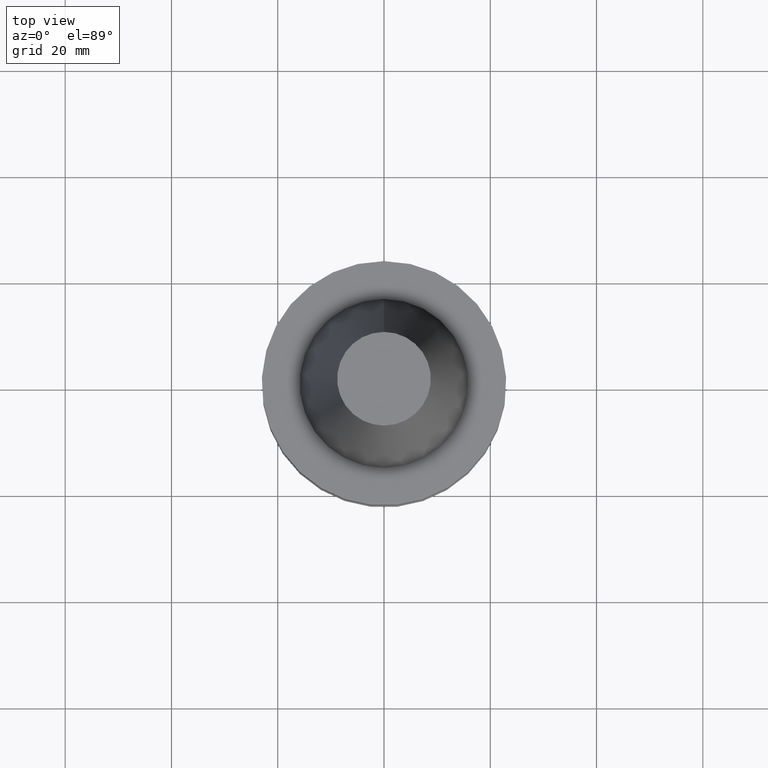
[diagram: clean part render]
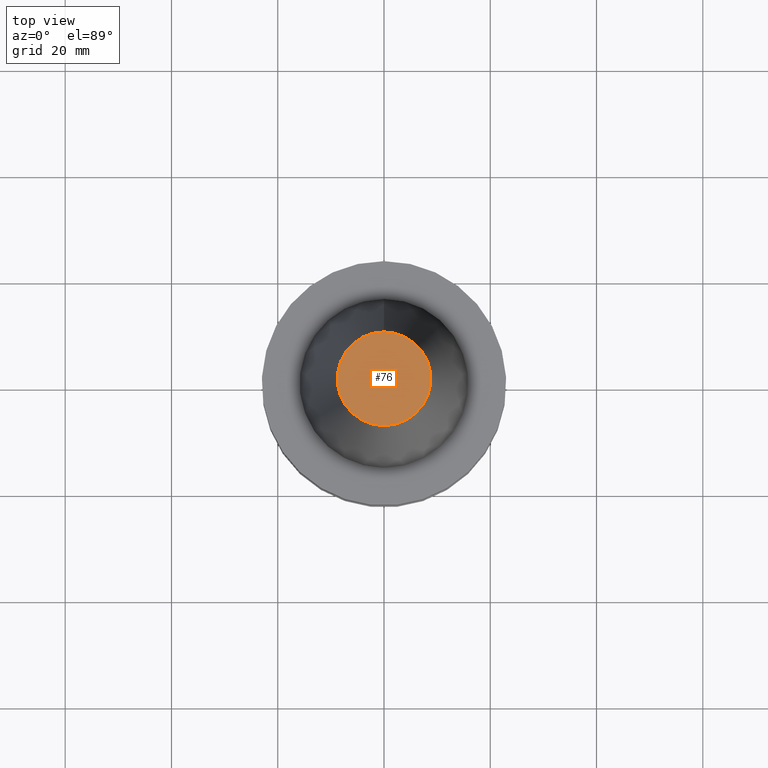
[diagram: same view with one face highlighted and labeled with its STEP entity id]
A machine part, top view. The second image highlights one B-rep face of the part: STEP entity #76.
In plain terms, the highlighted planar face has unit normal (-0, -0, 1).
Its self-contained STEP definition (entity closure, byte-faithful):
#76=ADVANCED_FACE('',(#91),#92,.T.);
#91=FACE_OUTER_BOUND('',#128,.T.);
#92=PLANE('',#129);
#128=EDGE_LOOP('',(#167));
#129=AXIS2_PLACEMENT_3D('',#168,#169,#170);
#167=ORIENTED_EDGE('',*,*,#227,.F.);
#168=CARTESIAN_POINT('',(-2.96364525393659E-015,4.40825,48.4));
#169=DIRECTION('',(-6.12323399573677E-017,-1.22464679914735E-016,1.0));
#170=DIRECTION('',(1.23259516440783E-032,-1.0,-1.22464679914735E-016));
#227=EDGE_CURVE('',#240,#240,#241,.T.);
#240=VERTEX_POINT('',#264);
#241=CIRCLE('',#265,8.81650000000001);
#264=CARTESIAN_POINT('',(-2.96364525393659E-015,8.8165,48.4));
#265=AXIS2_PLACEMENT_3D('',#289,#290,#291);
#289=CARTESIAN_POINT('',(-2.96364525393659E-015,-5.92729050787319E-015,48.4));
#290=DIRECTION('',(6.12323399573677E-017,1.22464679914735E-016,-1.0));
#291=DIRECTION('',(-1.23259516440783E-032,1.0,1.22464679914735E-016));